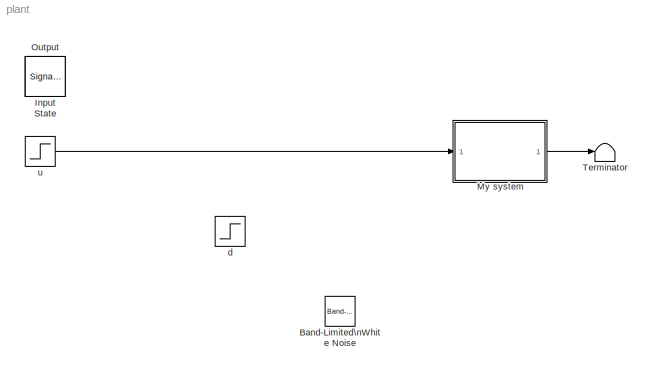
MODEL plant
KIND model
BLOCK [Reference] Band-Limited\nWhite Noise  REF=simulink/Sources/Band-Limited\nWhite Noise
  Cov = 1e-6
  IOType = siggen
  Ports = [0, 1]
  SID = 12
  SourceBlock = simulink/Sources/Band-Limited\nWhite Noise
  SourceType = Band-Limited White Noise.
  Ts = 1e-3
  VectorParams1D = on
  seed = [23341]
BLOCK [SignalViewerScope] Input
  IOType = viewer
  LegendLocations = 0.72634     0.90311     0.19753    0.035179\n0.72788     0.44204     0.19753    0.035179
  LimitDataPoints = off
  MaxDataPoints = 7500
  NumInputPorts = 2
  Ports = []
  RefreshTime = 0.035000
  SID = 17
  SaveName = ScopeData2
  ShowDataMarkers = off
  ShowLegends = on
  TimeRange = 40
  YMax = 1.6~0.05
  YMin = 0.2~0
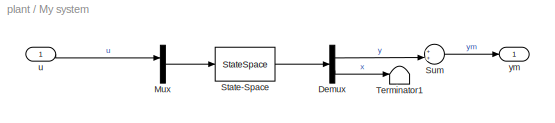
BLOCK [SubSystem] My system
  FunctionWithSeparateData = off
  MaskHideContents = off
  MinAlgLoopOccurrences = off
  Opaque = off
  Ports = [1, 1]
  PropExecContextOutsideSubsystem = off
  RTWSystemCode = Auto
  RequestExecContextInheritance = off
  SID = 1
BLOCK [Demux] My system/Demux
  DisplayOption = bar
  Outputs = [1 3]
  Ports = [1, 2]
  SID = 3
BLOCK [Mux] My system/Mux
  DisplayOption = bar
  Inputs = 2
  Ports = [2, 1]
  SID = 5
BLOCK [StateSpace] My system/State-Space
  A = A
  B = [B Bd]
  C = [C; eye(3)]
  D = [D Dd; zeros(3,2)]
  SID = 6
  X0 = xbar
BLOCK [Sum] My system/Sum
  IconShape = round
  InputSameDT = off
  Inputs = ++|
  OutDataTypeStr = Inherit: Inherit via internal rule
  Ports = [2, 1]
  SID = 7
  SaturateOnIntegerOverflow = off
BLOCK [Terminator] My system/Terminator1
  SID = 8
BLOCK [Inport] My system/u
  IconDisplay = Port number
  SID = 2
BLOCK [Outport] My system/ym
  IconDisplay = Port number
  SID = 9
BLOCK [SignalViewerScope] Output
  IOType = viewer
  MaxDataPoints = 7500
  NumInputPorts = 2
  Ports = []
  RefreshTime = 0.035000
  SID = 14
  SaveName = ScopeData1
  ShowDataMarkers = off
  ShowLegends = off
  TimeRange = 10
  YMax = 500000~500000
  YMin = -3e+006~-3e+006
BLOCK [SignalViewerScope] State
  IOType = viewer
  LimitDataPoints = off
  MaxDataPoints = 7500
  NumInputPorts = 1
  Ports = []
  RefreshTime = 0.035000
  SID = 13
  ShowDataMarkers = off
  ShowLegends = off
  TimeRange = 10
  YMax = 200000
  YMin = -300000
  ZoomMode = yonly
BLOCK [Terminator] Terminator
  SID = 10
BLOCK [Step] d
  After = dbar+0.05
  Before = dbar
  IOType = siggen
  SID = 15
  SampleTime = 0
  Time = 10
BLOCK [Step] u
  After = ubar+1
  Before = ubar
  SID = 11
  SampleTime = 0
  Time = 5
LINE My system/Demux:1 -> My system/Sum:2
LINE My system/Demux:2 -> My system/Terminator1:1
LINE My system/Mux:1 -> My system/State-Space:1
LINE My system/State-Space:1 -> My system/Demux:1
LINE My system/Sum:1 -> My system/ym:1
LINE My system/u:1 -> My system/Mux:1
LINE My system:1 -> Terminator:1
LINE u:1 -> My system:1
